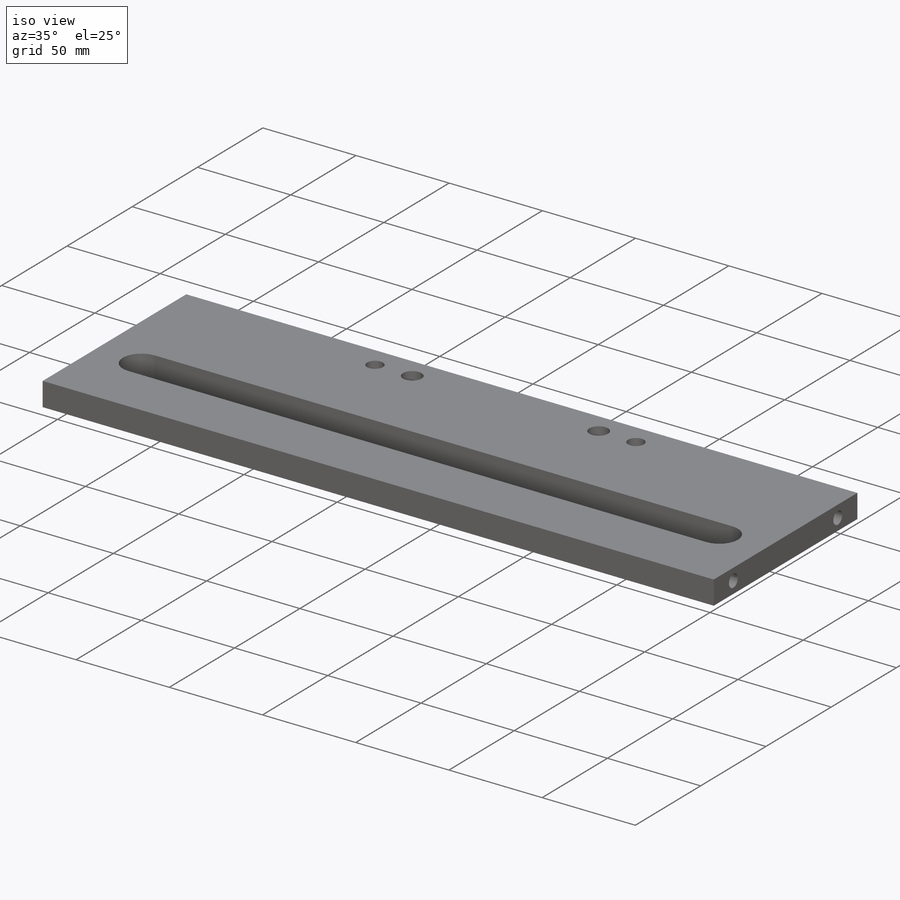
[diagram: iso view]
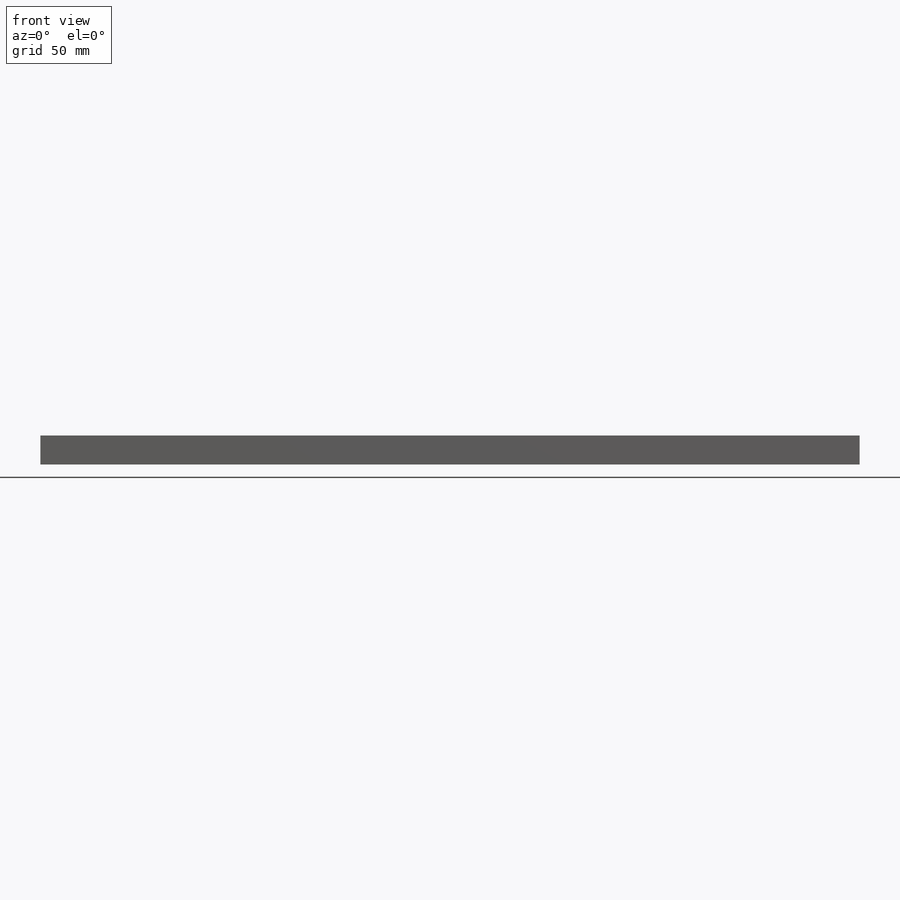
[diagram: front view]
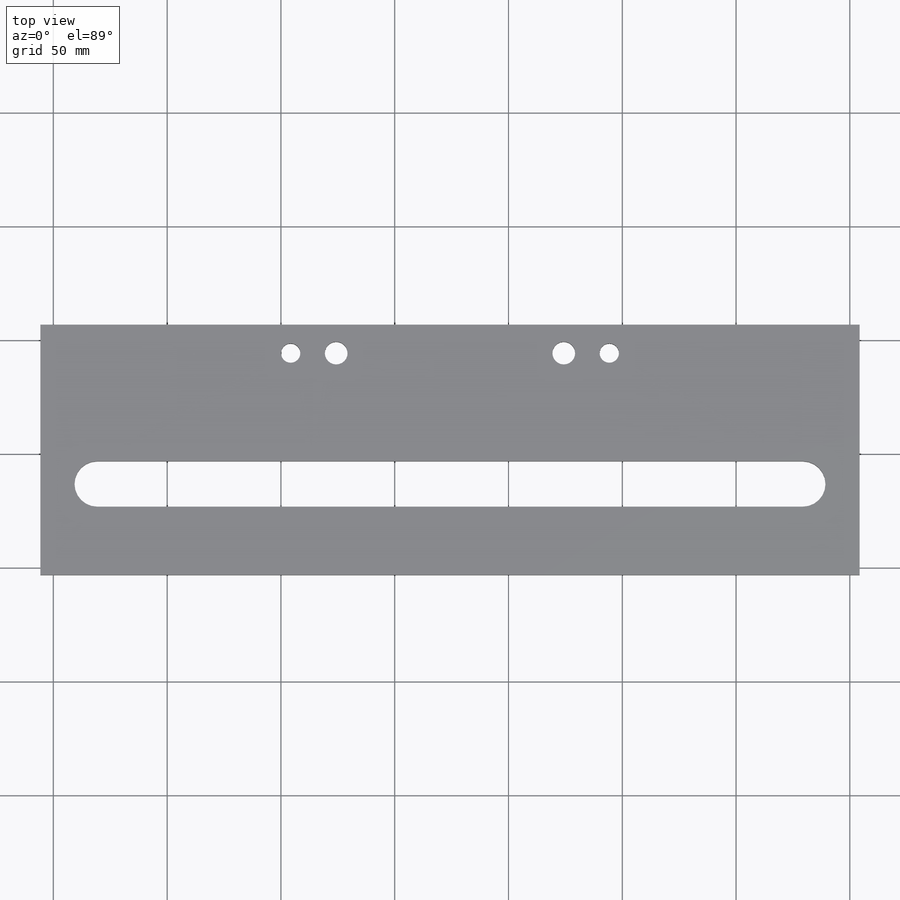
[diagram: top view]
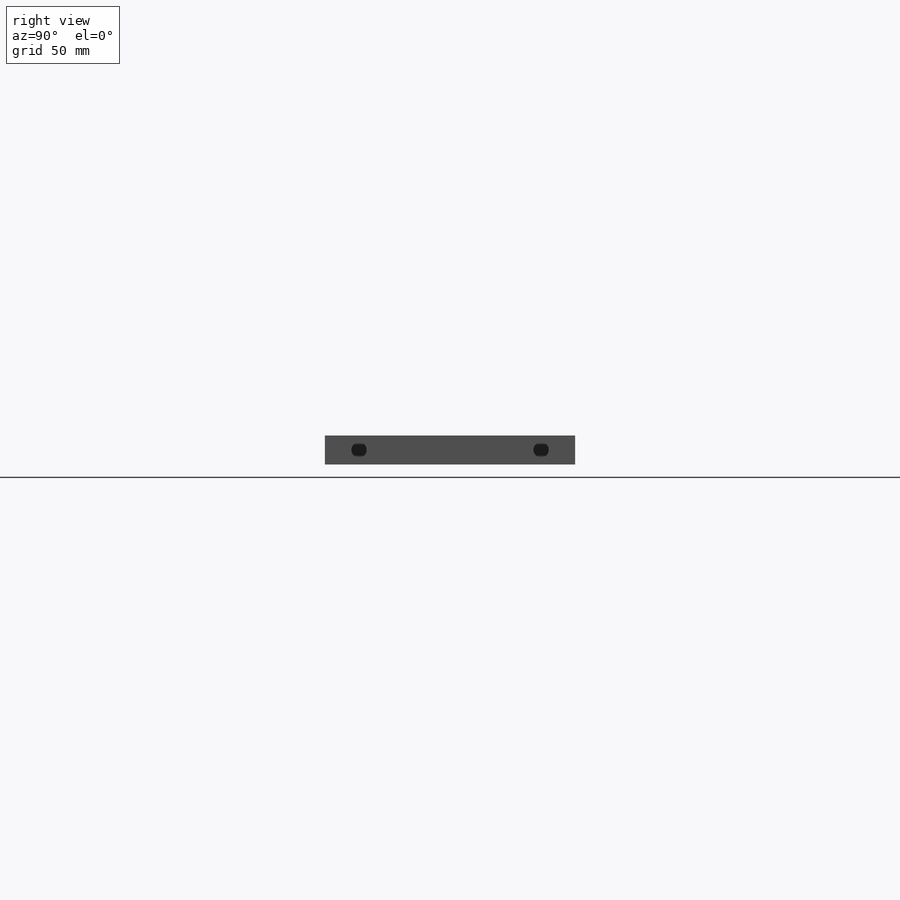
[diagram: right view]
SOLIDWORKS PART (.sldprt)
format: sldprt  version: not decoded by parser v0  size: 226,304 bytes
history: native  units: mm
features: sketch x5, cut_extrude x4, plane x3, material x1, extrude x1 (+10 scaffold rows collapsed)
feature tree (24):
  scaffold x10  (default folders/planes/origin — collapsed)
  material  "Material <sin especificar>"
  plane  "Alzado"
  plane  "Planta"
  plane  "Vista lateral"
  sketch  "Croquis1"  dims[D1=280.0mm D2=110.0mm]
  extrude  "Saliente-Extruir1"  Depth=20mm
  sketch  "Croquis2"  dims[c1.D4=10.0mm c1.D1=65.0mm c1.D2=20.0mm c1.D3=220.0mm c2.D4=30.0mm]
  cut_extrude  "Cortar-Extruir2"  Depth=20mm
  sketch  "Croquis4"  dims[c1.D3=5.0mm c1.D1=8.5mm c1.D2=8.5mm c2.D1=10.0mm c2.D2=10.0mm c2.D3=30.0mm c2.D4=30.0mm c2.D5=90.0mm c2.D6=90.0mm c3.D3=12.5mm c3.D4=30.0mm c4.D3=110.0mm c4.D4=110.0mm c4.D5=180.0mm c4.D6=130.0mm c4.D1=50.0mm]
  cut_extrude  "Cortar-Extruir4"  Depth=20mm
  sketch  "Croquis5"  dims[c1.D3=10.0mm c1.D6=10.0mm c1.D1=15.0mm c1.D2=6.35mm c1.D4=35.0mm c1.D5=10.0mm c2.D1=35.0mm c2.D2=10.0mm]
  cut_extrude  "Cortar-Extruir5"  Depth=18mm
  sketch  "Croquis6"  dims[c1.D1=10.0mm c1.D2=10.0mm c1.D3=6.35mm c1.D4=6.35mm c1.D5=35.0mm c1.D6=35.0mm c2.D3=10.0mm c2.D4=10.0mm]
  cut_extrude  "Cortar-Extruir6"  Depth=18mm
decode coverage: 10 of 10 modeling features carry decoded parameters
note: suppression state not decoded; provenance and decode notes live in map.json
